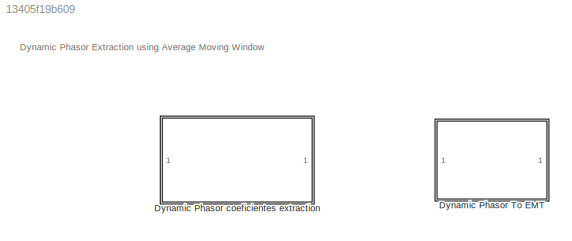
MODEL slx_13405f19b609
KIND model
CONFIG AbsTol = auto
CONFIG EnableMultiTasking = off
CONFIG FixedStep = auto
CONFIG MaxStep = auto
CONFIG MinStep = auto
CONFIG RelTol = 1e-3
CONFIG SampleTimeConstraint = Unconstrained
CONFIG SolverName = VariableStepAuto
CONFIG StartTime = 0.0
CONFIG StopTime = 10.0
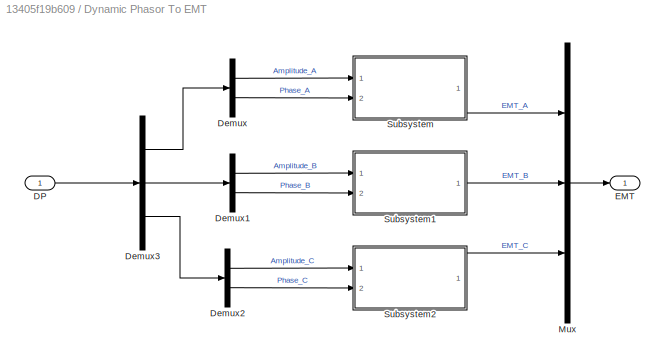
BLOCK [SubSystem] Dynamic Phasor To EMT
  Ports = [1, 1]
  RequestExecContextInheritance = off
BLOCK [Inport] Dynamic Phasor To EMT/DP
BLOCK [Demux] Dynamic Phasor To EMT/Demux
  Outputs = 2
  Ports = [1, 2]
BLOCK [Demux] Dynamic Phasor To EMT/Demux1
  Outputs = 2
  Ports = [1, 2]
BLOCK [Demux] Dynamic Phasor To EMT/Demux2
  Outputs = 2
  Ports = [1, 2]
BLOCK [Demux] Dynamic Phasor To EMT/Demux3
  Outputs = 3
  Ports = [1, 3]
BLOCK [Outport] Dynamic Phasor To EMT/EMT
BLOCK [Mux] Dynamic Phasor To EMT/Mux
  DisplayOption = bar
  Inputs = 3
  Ports = [3, 1]
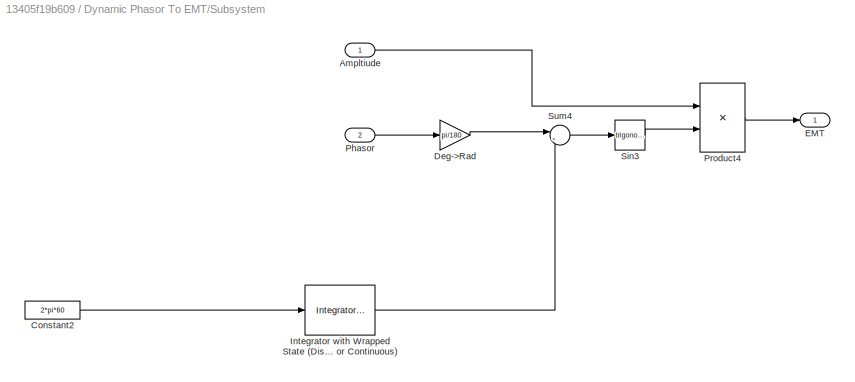
BLOCK [SubSystem] Dynamic Phasor To EMT/Subsystem
  Ports = [2, 1]
  RequestExecContextInheritance = off
BLOCK [Inport] Dynamic Phasor To EMT/Subsystem/Ampltiude
BLOCK [Constant] Dynamic Phasor To EMT/Subsystem/Constant2
  Value = 2*pi*60
BLOCK [Gain] Dynamic Phasor To EMT/Subsystem/Deg->Rad
  Gain = pi/180
BLOCK [Outport] Dynamic Phasor To EMT/Subsystem/EMT
BLOCK [Reference] Dynamic Phasor To EMT/Subsystem/Integrator with Wrapped State (Discrete or Continuous)  REF=eeGeneralControl/Integrator with
Wrapped State
(Discrete or Continuous)
  Ports = [1, 1]
  SourceBlock = eeGeneralControl/Integrator with\nWrapped State\n(Discrete or Continuous)
  SourceProductBaseCode = PS
  SourceType = Integrator with Wrapped State (Discrete or Continuous)
BLOCK [Inport] Dynamic Phasor To EMT/Subsystem/Phasor
  Port = 2
BLOCK [Product] Dynamic Phasor To EMT/Subsystem/Product4
  Ports = [2, 1]
BLOCK [Trigonometry] Dynamic Phasor To EMT/Subsystem/Sin3
  Ports = [1, 1]
BLOCK [Sum] Dynamic Phasor To EMT/Subsystem/Sum4
  Inputs = |++
  NameLocation = top
  Ports = [2, 1]
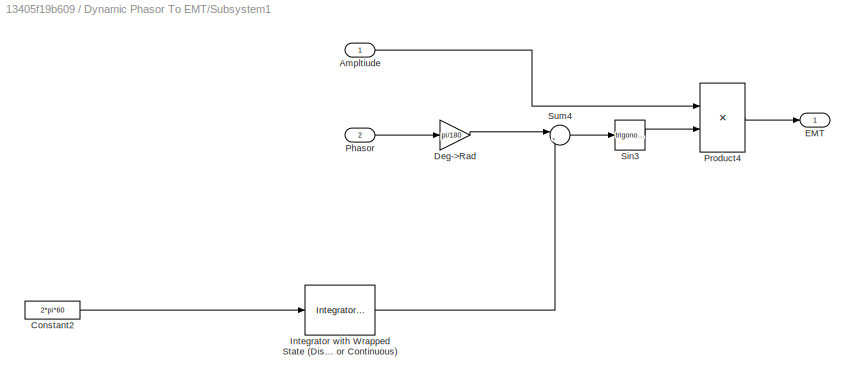
BLOCK [SubSystem] Dynamic Phasor To EMT/Subsystem1
  Ports = [2, 1]
  RequestExecContextInheritance = off
BLOCK [Inport] Dynamic Phasor To EMT/Subsystem1/Ampltiude
BLOCK [Constant] Dynamic Phasor To EMT/Subsystem1/Constant2
  Value = 2*pi*60
BLOCK [Gain] Dynamic Phasor To EMT/Subsystem1/Deg->Rad
  Gain = pi/180
BLOCK [Outport] Dynamic Phasor To EMT/Subsystem1/EMT
BLOCK [Reference] Dynamic Phasor To EMT/Subsystem1/Integrator with Wrapped State (Discrete or Continuous)  REF=eeGeneralControl/Integrator with
Wrapped State
(Discrete or Continuous)
  Ports = [1, 1]
  SourceBlock = eeGeneralControl/Integrator with\nWrapped State\n(Discrete or Continuous)
  SourceProductBaseCode = PS
  SourceType = Integrator with Wrapped State (Discrete or Continuous)
BLOCK [Inport] Dynamic Phasor To EMT/Subsystem1/Phasor
  Port = 2
BLOCK [Product] Dynamic Phasor To EMT/Subsystem1/Product4
  Ports = [2, 1]
BLOCK [Trigonometry] Dynamic Phasor To EMT/Subsystem1/Sin3
  Ports = [1, 1]
BLOCK [Sum] Dynamic Phasor To EMT/Subsystem1/Sum4
  Inputs = |++
  NameLocation = top
  Ports = [2, 1]
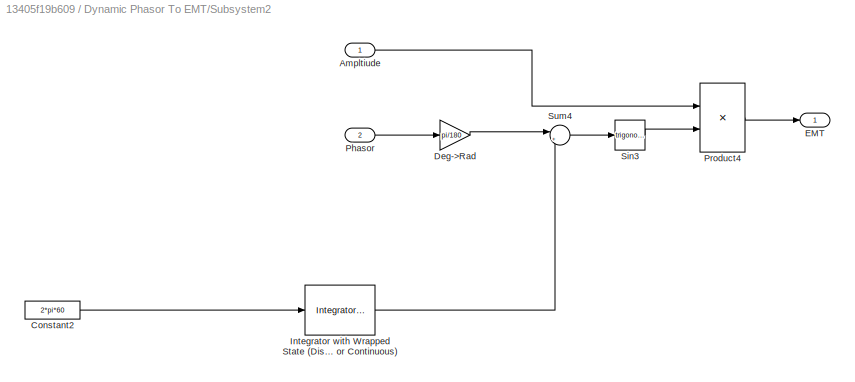
BLOCK [SubSystem] Dynamic Phasor To EMT/Subsystem2
  Ports = [2, 1]
  RequestExecContextInheritance = off
BLOCK [Inport] Dynamic Phasor To EMT/Subsystem2/Ampltiude
BLOCK [Constant] Dynamic Phasor To EMT/Subsystem2/Constant2
  Value = 2*pi*60
BLOCK [Gain] Dynamic Phasor To EMT/Subsystem2/Deg->Rad
  Gain = pi/180
BLOCK [Outport] Dynamic Phasor To EMT/Subsystem2/EMT
BLOCK [Reference] Dynamic Phasor To EMT/Subsystem2/Integrator with Wrapped State (Discrete or Continuous)  REF=eeGeneralControl/Integrator with
Wrapped State
(Discrete or Continuous)
  Ports = [1, 1]
  SourceBlock = eeGeneralControl/Integrator with\nWrapped State\n(Discrete or Continuous)
  SourceProductBaseCode = PS
  SourceType = Integrator with Wrapped State (Discrete or Continuous)
BLOCK [Inport] Dynamic Phasor To EMT/Subsystem2/Phasor
  Port = 2
BLOCK [Product] Dynamic Phasor To EMT/Subsystem2/Product4
  Ports = [2, 1]
BLOCK [Trigonometry] Dynamic Phasor To EMT/Subsystem2/Sin3
  Ports = [1, 1]
BLOCK [Sum] Dynamic Phasor To EMT/Subsystem2/Sum4
  Inputs = |++
  NameLocation = top
  Ports = [2, 1]
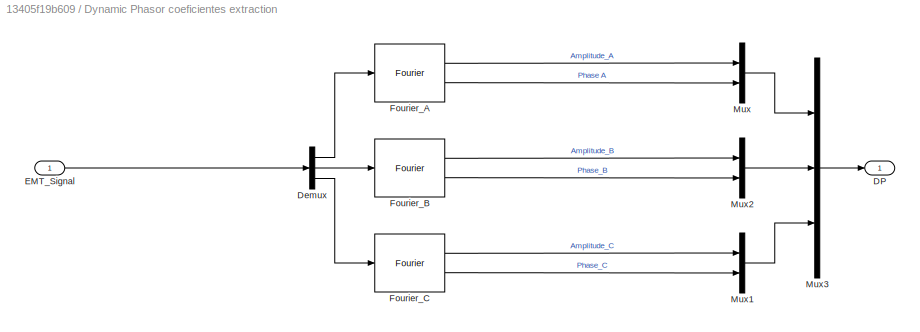
BLOCK [SubSystem] Dynamic Phasor coeficientes extraction
  Ports = [1, 1]
  RequestExecContextInheritance = off
BLOCK [Outport] Dynamic Phasor coeficientes extraction/DP
BLOCK [Demux] Dynamic Phasor coeficientes extraction/Demux
  Outputs = 3
  Ports = [1, 3]
BLOCK [Inport] Dynamic Phasor coeficientes extraction/EMT_Signal
BLOCK [Reference] Dynamic Phasor coeficientes extraction/Fourier_A  REF=spsFourierLib/Fourier
  Ports = [1, 2]
  SourceBlock = spsFourierLib/Fourier
  SourceProductBaseCode = PS
  SourceType = Fourier
BLOCK [Reference] Dynamic Phasor coeficientes extraction/Fourier_B  REF=spsFourierLib/Fourier
  Ports = [1, 2]
  SourceBlock = spsFourierLib/Fourier
  SourceProductBaseCode = PS
  SourceType = Fourier
BLOCK [Reference] Dynamic Phasor coeficientes extraction/Fourier_C  REF=spsFourierLib/Fourier
  Ports = [1, 2]
  SourceBlock = spsFourierLib/Fourier
  SourceProductBaseCode = PS
  SourceType = Fourier
BLOCK [Mux] Dynamic Phasor coeficientes extraction/Mux
  DisplayOption = bar
  Inputs = 2
  Ports = [2, 1]
BLOCK [Mux] Dynamic Phasor coeficientes extraction/Mux1
  DisplayOption = bar
  Inputs = 2
  Ports = [2, 1]
BLOCK [Mux] Dynamic Phasor coeficientes extraction/Mux2
  DisplayOption = bar
  Inputs = 2
  Ports = [2, 1]
BLOCK [Mux] Dynamic Phasor coeficientes extraction/Mux3
  DisplayOption = bar
  Inputs = 3
  Ports = [3, 1]
ANNOTATION (root): Dynamic Phasor Extraction using Average Moving Window
LINE Dynamic Phasor To EMT/DP:1 -> Dynamic Phasor To EMT/Demux3:1
LINE Dynamic Phasor To EMT/Demux1:1 -> Dynamic Phasor To EMT/Subsystem1:1
LINE Dynamic Phasor To EMT/Demux1:2 -> Dynamic Phasor To EMT/Subsystem1:2
LINE Dynamic Phasor To EMT/Demux2:1 -> Dynamic Phasor To EMT/Subsystem2:1
LINE Dynamic Phasor To EMT/Demux2:2 -> Dynamic Phasor To EMT/Subsystem2:2
LINE Dynamic Phasor To EMT/Demux3:1 -> Dynamic Phasor To EMT/Demux:1
LINE Dynamic Phasor To EMT/Demux3:2 -> Dynamic Phasor To EMT/Demux1:1
LINE Dynamic Phasor To EMT/Demux3:3 -> Dynamic Phasor To EMT/Demux2:1
LINE Dynamic Phasor To EMT/Demux:1 -> Dynamic Phasor To EMT/Subsystem:1
LINE Dynamic Phasor To EMT/Demux:2 -> Dynamic Phasor To EMT/Subsystem:2
LINE Dynamic Phasor To EMT/Mux:1 -> Dynamic Phasor To EMT/EMT:1
LINE Dynamic Phasor To EMT/Subsystem/Ampltiude:1 -> Dynamic Phasor To EMT/Subsystem/Product4:1
LINE Dynamic Phasor To EMT/Subsystem/Constant2:1 -> Dynamic Phasor To EMT/Subsystem/Integrator with Wrapped State (Discrete or Continuous):1
LINE Dynamic Phasor To EMT/Subsystem/Deg->Rad:1 -> Dynamic Phasor To EMT/Subsystem/Sum4:1
LINE Dynamic Phasor To EMT/Subsystem/Integrator with Wrapped State (Discrete or Continuous):1 -> Dynamic Phasor To EMT/Subsystem/Sum4:2
LINE Dynamic Phasor To EMT/Subsystem/Phasor:1 -> Dynamic Phasor To EMT/Subsystem/Deg->Rad:1
LINE Dynamic Phasor To EMT/Subsystem/Product4:1 -> Dynamic Phasor To EMT/Subsystem/EMT:1
LINE Dynamic Phasor To EMT/Subsystem/Sin3:1 -> Dynamic Phasor To EMT/Subsystem/Product4:2
LINE Dynamic Phasor To EMT/Subsystem/Sum4:1 -> Dynamic Phasor To EMT/Subsystem/Sin3:1
LINE Dynamic Phasor To EMT/Subsystem1/Ampltiude:1 -> Dynamic Phasor To EMT/Subsystem1/Product4:1
LINE Dynamic Phasor To EMT/Subsystem1/Constant2:1 -> Dynamic Phasor To EMT/Subsystem1/Integrator with Wrapped State (Discrete or Continuous):1
LINE Dynamic Phasor To EMT/Subsystem1/Deg->Rad:1 -> Dynamic Phasor To EMT/Subsystem1/Sum4:1
LINE Dynamic Phasor To EMT/Subsystem1/Integrator with Wrapped State (Discrete or Continuous):1 -> Dynamic Phasor To EMT/Subsystem1/Sum4:2
LINE Dynamic Phasor To EMT/Subsystem1/Phasor:1 -> Dynamic Phasor To EMT/Subsystem1/Deg->Rad:1
LINE Dynamic Phasor To EMT/Subsystem1/Product4:1 -> Dynamic Phasor To EMT/Subsystem1/EMT:1
LINE Dynamic Phasor To EMT/Subsystem1/Sin3:1 -> Dynamic Phasor To EMT/Subsystem1/Product4:2
LINE Dynamic Phasor To EMT/Subsystem1/Sum4:1 -> Dynamic Phasor To EMT/Subsystem1/Sin3:1
LINE Dynamic Phasor To EMT/Subsystem1:1 -> Dynamic Phasor To EMT/Mux:2
LINE Dynamic Phasor To EMT/Subsystem2/Ampltiude:1 -> Dynamic Phasor To EMT/Subsystem2/Product4:1
LINE Dynamic Phasor To EMT/Subsystem2/Constant2:1 -> Dynamic Phasor To EMT/Subsystem2/Integrator with Wrapped State (Discrete or Continuous):1
LINE Dynamic Phasor To EMT/Subsystem2/Deg->Rad:1 -> Dynamic Phasor To EMT/Subsystem2/Sum4:1
LINE Dynamic Phasor To EMT/Subsystem2/Integrator with Wrapped State (Discrete or Continuous):1 -> Dynamic Phasor To EMT/Subsystem2/Sum4:2
LINE Dynamic Phasor To EMT/Subsystem2/Phasor:1 -> Dynamic Phasor To EMT/Subsystem2/Deg->Rad:1
LINE Dynamic Phasor To EMT/Subsystem2/Product4:1 -> Dynamic Phasor To EMT/Subsystem2/EMT:1
LINE Dynamic Phasor To EMT/Subsystem2/Sin3:1 -> Dynamic Phasor To EMT/Subsystem2/Product4:2
LINE Dynamic Phasor To EMT/Subsystem2/Sum4:1 -> Dynamic Phasor To EMT/Subsystem2/Sin3:1
LINE Dynamic Phasor To EMT/Subsystem2:1 -> Dynamic Phasor To EMT/Mux:3
LINE Dynamic Phasor To EMT/Subsystem:1 -> Dynamic Phasor To EMT/Mux:1
LINE Dynamic Phasor coeficientes extraction/Demux:1 -> Dynamic Phasor coeficientes extraction/Fourier_A:1
LINE Dynamic Phasor coeficientes extraction/Demux:2 -> Dynamic Phasor coeficientes extraction/Fourier_B:1
LINE Dynamic Phasor coeficientes extraction/Demux:3 -> Dynamic Phasor coeficientes extraction/Fourier_C:1
LINE Dynamic Phasor coeficientes extraction/EMT_Signal:1 -> Dynamic Phasor coeficientes extraction/Demux:1
LINE Dynamic Phasor coeficientes extraction/Fourier_A:1 -> Dynamic Phasor coeficientes extraction/Mux:1
LINE Dynamic Phasor coeficientes extraction/Fourier_A:2 -> Dynamic Phasor coeficientes extraction/Mux:2
LINE Dynamic Phasor coeficientes extraction/Fourier_B:1 -> Dynamic Phasor coeficientes extraction/Mux2:1
LINE Dynamic Phasor coeficientes extraction/Fourier_B:2 -> Dynamic Phasor coeficientes extraction/Mux2:2
LINE Dynamic Phasor coeficientes extraction/Fourier_C:1 -> Dynamic Phasor coeficientes extraction/Mux1:1
LINE Dynamic Phasor coeficientes extraction/Fourier_C:2 -> Dynamic Phasor coeficientes extraction/Mux1:2
LINE Dynamic Phasor coeficientes extraction/Mux1:1 -> Dynamic Phasor coeficientes extraction/Mux3:3
LINE Dynamic Phasor coeficientes extraction/Mux2:1 -> Dynamic Phasor coeficientes extraction/Mux3:2
LINE Dynamic Phasor coeficientes extraction/Mux3:1 -> Dynamic Phasor coeficientes extraction/DP:1
LINE Dynamic Phasor coeficientes extraction/Mux:1 -> Dynamic Phasor coeficientes extraction/Mux3:1
